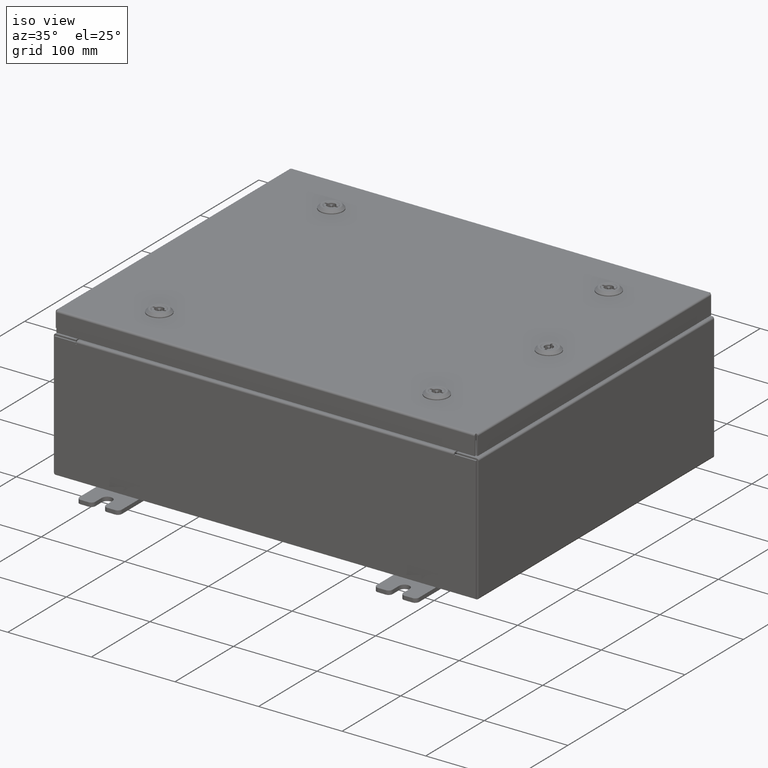
[diagram: clean part render]
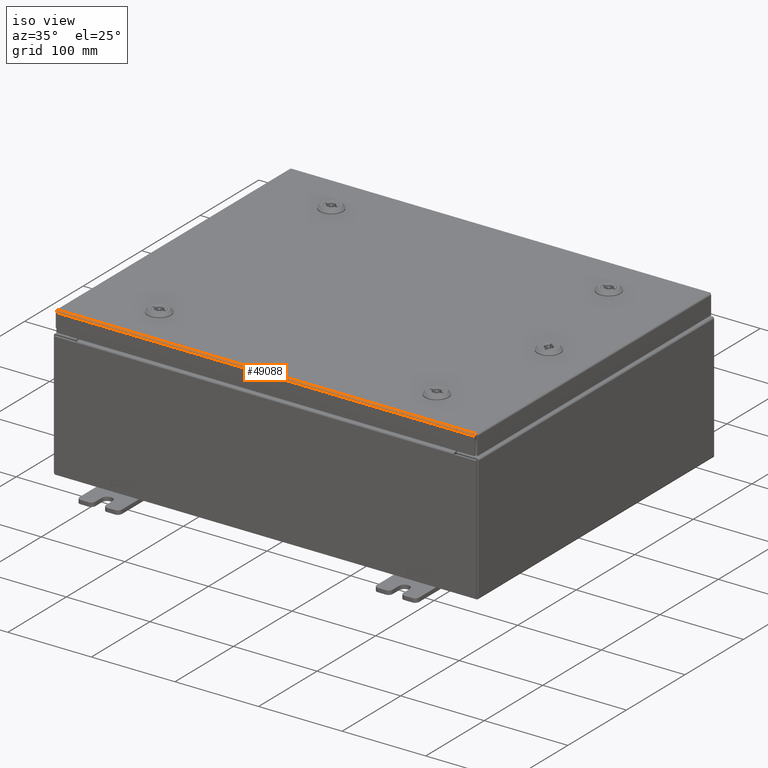
[diagram: same view with one face highlighted and labeled with its STEP entity id]
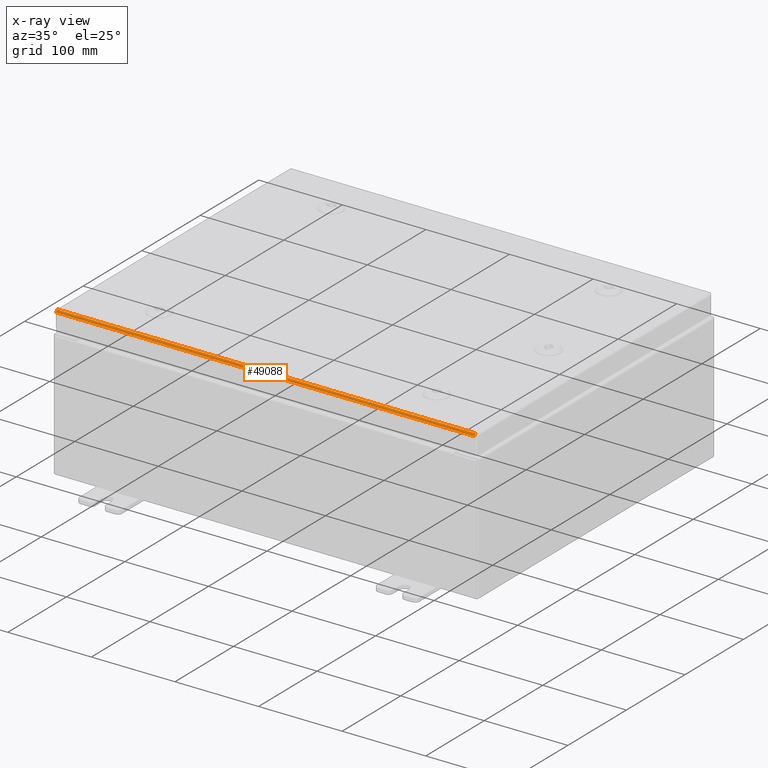
[diagram: x-ray of the same camera — body ghosted, the highlighted face saturated]
A machine part, iso view. The second image highlights one B-rep face of the part: STEP entity #49088.
The next image is the same camera in x-ray: the body ghosted, the highlighted face saturated — about 0% of this face is hidden behind the body in this view.
In plain terms, the highlighted cylindrical surface (edge-blend (fillet) strip) has radius 2.2276 mm, axis along (-1, 0, 0).
Its self-contained STEP definition (entity closure, byte-faithful):
#1169 = DIRECTION ( 'NONE',  ( 1.000000000000000000, 4.699145404622725200E-031, -1.802587771145536000E-045 ) ) ;
#2628 = DIRECTION ( 'NONE',  ( -1.000000000000000000, 0.0000000000000000000, 0.0000000000000000000 ) ) ;
#3484 = CARTESIAN_POINT ( 'NONE',  ( 9.849704822031359400, -7.861279903154991400, -1.719743664956860300E-016 ) ) ;
#3813 = EDGE_CURVE ( 'NONE', #50933, #4613, #24565, .T. ) ;
#4613 = VERTEX_POINT ( 'NONE', #5530 ) ;
#5373 = CARTESIAN_POINT ( 'NONE',  ( -9.848848220313559700, -7.935217403743811500, -0.06474471054169110600 ) ) ;
#5530 = CARTESIAN_POINT ( 'NONE',  ( 9.848657864376273000, -7.937499999999999100, -0.08770000000000026400 ) ) ;
#7481 = DIRECTION ( 'NONE',  ( 0.0000000000000000000, -1.000000000000000000, 3.893740013774593800E-015 ) ) ;
#7961 = CYLINDRICAL_SURFACE ( 'NONE', #12975, 0.08770000000000026400 ) ;
#10001 = CARTESIAN_POINT ( 'NONE',  ( -9.848657864376269400, -7.937499999999999100, -0.08770000000000026400 ) ) ;
#10199 = CARTESIAN_POINT ( 'NONE',  ( -9.849133754219488800, -7.919930782078320200, -0.03380425265820001500 ) ) ;
#11173 = VERTEX_POINT ( 'NONE', #46055 ) ;
#12975 = AXIS2_PLACEMENT_3D ( 'NONE', #35830, #2628, #7481 ) ;
#13194 = CARTESIAN_POINT ( 'NONE',  ( 9.849609644062715200, -7.872755289458309500, -0.002282596256188893000 ) ) ;
#15068 = CARTESIAN_POINT ( 'NONE',  ( -9.849419288125421400, -7.893967384578528100, -0.01106893374133172500 ) ) ;
#17677 = CARTESIAN_POINT ( 'NONE',  ( -9.849799999999996600, -7.849799999999999200, 0.0000000000000000000 ) ) ;
#18045 = CARTESIAN_POINT ( 'NONE',  ( 9.849324110156782600, -7.903695747341799900, -0.01756921792167970600 ) ) ;
#19901 = CARTESIAN_POINT ( 'NONE',  ( -9.849704822031354100, -7.861279903154992300, -1.710739771423055000E-016 ) ) ;
#20730 = FACE_OUTER_BOUND ( 'NONE', #57809, .T. ) ;
#22849 = CARTESIAN_POINT ( 'NONE',  ( 9.849038576250846300, -7.926431066258667900, -0.04353261542147215300 ) ) ;
#24565 = LINE ( 'NONE', #49079, #48584 ) ;
#25189 = B_SPLINE_CURVE_WITH_KNOTS ( 'NONE', 3,
 ( #37113, #3484, #13194, #46804, #18045, #51577, #22849, #56389, #27692, #61180 ),
 .UNSPECIFIED., .F., .F.,
 ( 4, 2, 2, 2, 4 ),
 ( 0.0000000000000000000, 0.2500000000000000000, 0.5000000000000000000, 0.7500000000000000000, 1.000000000000000000 ),
 .UNSPECIFIED. ) ;
#27657 = DIRECTION ( 'NONE',  ( 1.000000000000000000, -0.0000000000000000000, -0.0000000000000000000 ) ) ;
#27692 = CARTESIAN_POINT ( 'NONE',  ( 9.848753042344915400, -7.937499999999999100, -0.07622009684500726000 ) ) ;
#32983 = CARTESIAN_POINT ( 'NONE',  ( -9.848657864376269400, -7.937499999999999100, -0.08770000000000026400 ) ) ;
#35636 = VECTOR ( 'NONE', #27657, 39.37007874015748100 ) ;
#35830 = CARTESIAN_POINT ( 'NONE',  ( -9.849799999999996600, -7.849799999999999200, -0.08770000000000026400 ) ) ;
#37113 = CARTESIAN_POINT ( 'NONE',  ( 9.849800000000001900, -7.849799999999999200, 0.0000000000000000000 ) ) ;
#38995 = CARTESIAN_POINT ( 'NONE',  ( -9.849038576250844600, -7.926431066258667900, -0.04353261542147215300 ) ) ;
#39474 = B_SPLINE_CURVE_WITH_KNOTS ( 'NONE', 3,
 ( #10001, #58023, #5373, #38995, #10199, #43839, #15068, #48645, #19901, #53438 ),
 .UNSPECIFIED., .F., .F.,
 ( 4, 2, 2, 2, 4 ),
 ( 0.0000000000000000000, 0.2500000000000000000, 0.5000000000000000000, 0.7500000000000000000, 1.000000000000000000 ),
 .UNSPECIFIED. ) ;
#40532 = EDGE_CURVE ( 'NONE', #11173, #4613, #25189, .T. ) ;
#43839 = CARTESIAN_POINT ( 'NONE',  ( -9.849324110156775400, -7.903695747341799900, -0.01756921792167971000 ) ) ;
#45955 = ORIENTED_EDGE ( 'NONE', *, *, #3813, .T. ) ;
#46055 = CARTESIAN_POINT ( 'NONE',  ( 9.849800000000001900, -7.849799999999999200, 0.0000000000000000000 ) ) ;
#46804 = CARTESIAN_POINT ( 'NONE',  ( 9.849419288125425000, -7.893967384578527200, -0.01106893374133172100 ) ) ;
#48399 = LINE ( 'NONE', #56559, #35636 ) ;
#48409 = ORIENTED_EDGE ( 'NONE', *, *, #62208, .F. ) ;
#48584 = VECTOR ( 'NONE', #1169, 39.37007874015748100 ) ;
#48645 = CARTESIAN_POINT ( 'NONE',  ( -9.849609644062709900, -7.872755289458309500, -0.002282596256188894300 ) ) ;
#49079 = CARTESIAN_POINT ( 'NONE',  ( 9.937500000000001800, -7.937499999999999100, -0.08770000000000026400 ) ) ;
#49088 = ADVANCED_FACE ( 'NONE', ( #20730 ), #7961, .T. ) ;
#50843 = VERTEX_POINT ( 'NONE', #17677 ) ;
#50933 = VERTEX_POINT ( 'NONE', #32983 ) ;
#51577 = CARTESIAN_POINT ( 'NONE',  ( 9.849133754219494100, -7.919930782078321100, -0.03380425265820001500 ) ) ;
#53438 = CARTESIAN_POINT ( 'NONE',  ( -9.849799999999996600, -7.849799999999999200, 0.0000000000000000000 ) ) ;
#56389 = CARTESIAN_POINT ( 'NONE',  ( 9.848848220313561400, -7.935217403743811500, -0.06474471054169110600 ) ) ;
#56559 = CARTESIAN_POINT ( 'NONE',  ( -9.849799999999996600, -7.849799999999999200, 0.0000000000000000000 ) ) ;
#57809 = EDGE_LOOP ( 'NONE', ( #48409, #59005, #45955, #61599 ) ) ;
#58023 = CARTESIAN_POINT ( 'NONE',  ( -9.848753042344910100, -7.937499999999997300, -0.07622009684500721800 ) ) ;
#59005 = ORIENTED_EDGE ( 'NONE', *, *, #60643, .F. ) ;
#60643 = EDGE_CURVE ( 'NONE', #50933, #50843, #39474, .T. ) ;
#61180 = CARTESIAN_POINT ( 'NONE',  ( 9.848657864376273000, -7.937499999999999100, -0.08770000000000026400 ) ) ;
#61599 = ORIENTED_EDGE ( 'NONE', *, *, #40532, .F. ) ;
#62208 = EDGE_CURVE ( 'NONE', #50843, #11173, #48399, .T. ) ;